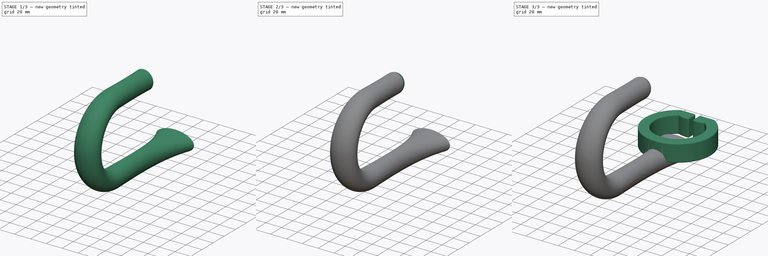
[diagram: build sequence overview — one tinted view per stage of 3, left to right]
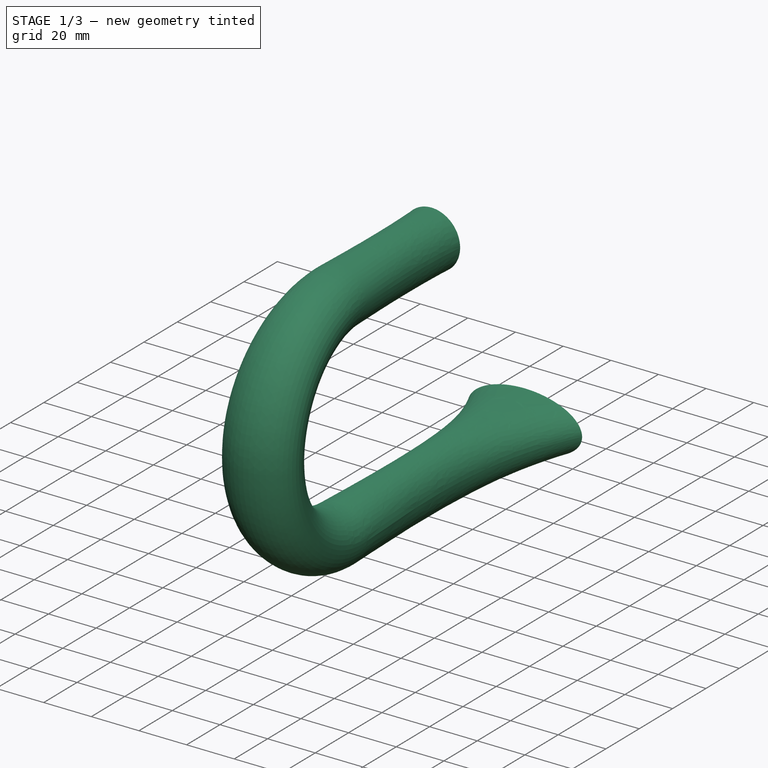
[diagram: stage 1 of 3 — iso view after this stage's code; geometry added in this stage tinted green]
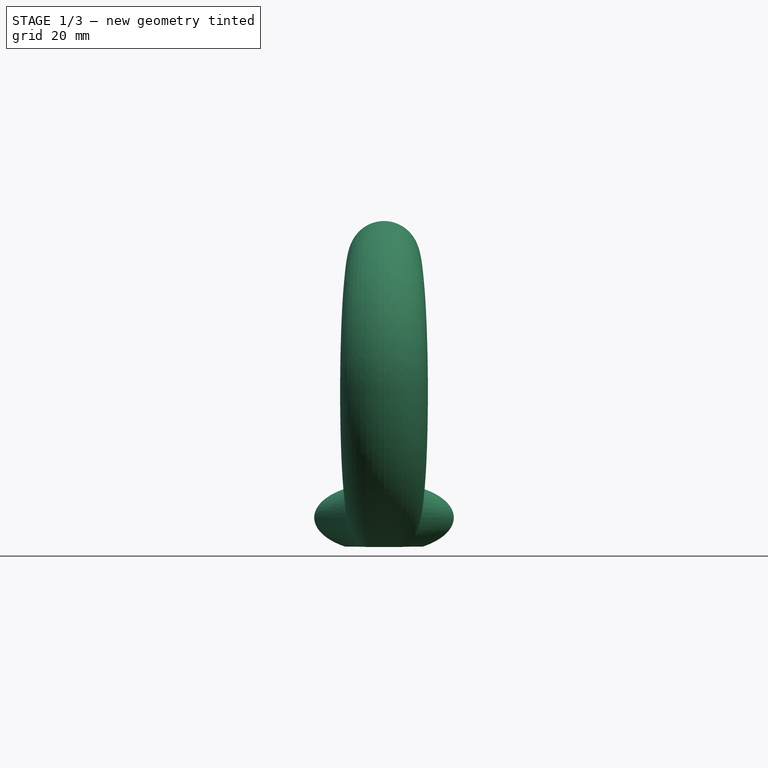
[diagram: stage 1 of 3 — front view after this stage's code; geometry added in this stage tinted green]
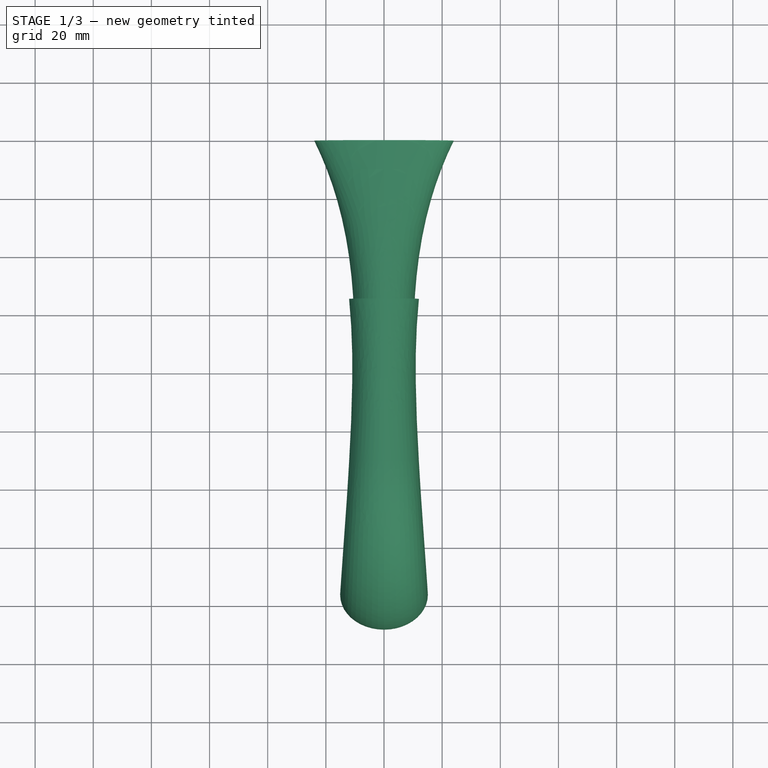
[diagram: stage 1 of 3 — top view after this stage's code; geometry added in this stage tinted green]
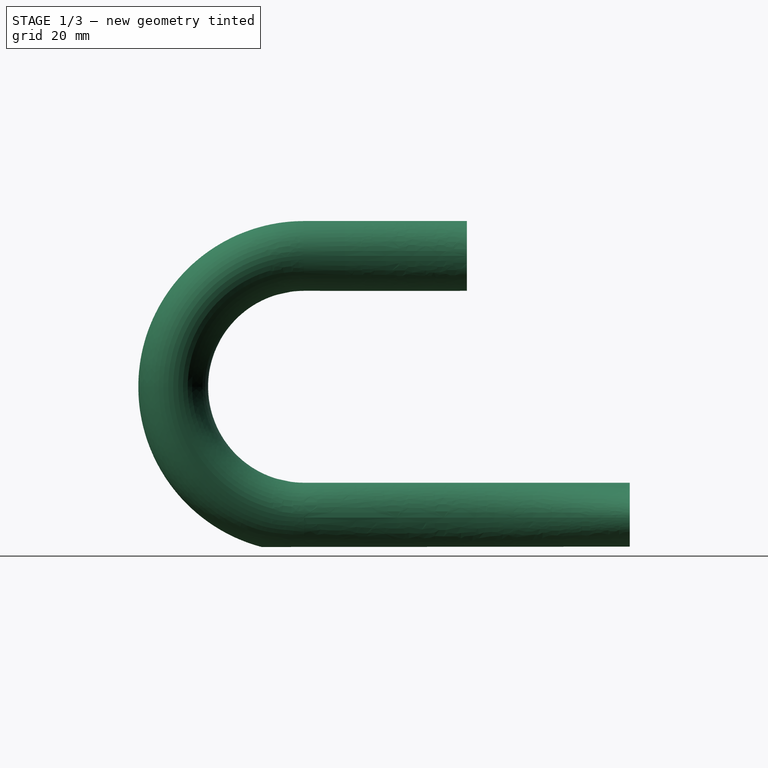
[diagram: stage 1 of 3 — right view after this stage's code; geometry added in this stage tinted green]
FCSTD DOCUMENT  (FreeCAD 1.0R39285 (Git))
Label: EVHook
License: All rights reserved
LicenseURL: https://en.wikipedia.org/wiki/All_rights_reserved
objects: Sketcher::SketchObject×8, PartDesign::Plane×6, PartDesign::Fillet×2, PartDesign::Body×2, Spreadsheet::Sheet×1, PartDesign::Pad×1, PartDesign::AdditivePipe×1, PartDesign::Pocket×1
note: 39 computed .brp shape members not serialized (recipe doc carries the construction recipe); baked Part::Feature solids carry a one-line shape summary decoded from their .brp

FEATURE [PartDesign::Body] Body  label="ChargerGripper"
  AllowCompound = false
  Group = -> [Sketch001,Pad,Fillet004]
  Origin = -> Origin
  Tip = -> Fillet004
FEATURE [PartDesign::Plane] DatumPlane003  label="LowerCurveDatumPlane"
  AttachmentSupport = -> [Sketch]
  Length = 65.9373
  MapMode = 7
  Placement = pos=(0,-112,0) rot=(1,0,0;1.5708rad)
  ResizeMode = 0
  Width = 142.936
FEATURE [Sketcher::SketchObject] Sketch005  label="LowerCurveDatumPlaneSketch"
  ArcFitTolerance = 0
  AttachmentSupport = -> [DatumPlane003]
  FullyConstrained = true
  MakeInternals = false
  MapMode = 5
  Placement = pos=(0,-112,0) rot=(1,0,0;1.5708rad)
  expr: Constraints[1] = Spreadsheet.WallThickness
  sketch-geometry (1):
    g0: Circle CenterX=0 CenterY=0 CenterZ=0 NormalX=0 NormalY=0 NormalZ=1 AngleXU=0 Radius=12
  constraints (2):
    c: Coincident(g0,g-1)
    c: Diameter(g0) = 24
FEATURE [PartDesign::Plane] DatumPlane004  label="UpperCurveDatumPlane"
  AttachmentSupport = -> [Sketch]
  Length = 65.9373
  MapMode = 7
  Placement = pos=(0,-112,90) rot=(0,0.707107,0.707107;3.14159rad)
  ResizeMode = 0
  Width = 142.936
FEATURE [Sketcher::SketchObject] Sketch006  label="UpperCurveDatumPlaneSketch"
  ArcFitTolerance = 0
  AttachmentSupport = -> [DatumPlane004]
  FullyConstrained = true
  MakeInternals = false
  MapMode = 5
  Placement = pos=(0,-112,90) rot=(0,0.707107,0.707107;3.14159rad)
  expr: Constraints[1] = Spreadsheet.WallThickness
  sketch-geometry (1):
    g0: Circle CenterX=0 CenterY=0 CenterZ=0 NormalX=0 NormalY=0 NormalZ=1 AngleXU=0 Radius=12
  constraints (2):
    c: Coincident(g0,g-1)
    c: Diameter(g0) = 24
FEATURE [PartDesign::AdditivePipe] AdditivePipe
  AuxilleryCurvelinear = true
  AuxillerySpineTangent = false
  Binormal = (0,0,0)
  Mode = 0
  Placement = pos=(0,0,0) rot=(0,0.707107,0.707107;3.14159rad)
  Profile = -> Sketch002
  Sections = -> [Sketch003,Sketch004,Sketch005,Sketch006]
  Spine = -> Sketch [Edge4,Edge3,Edge2,Edge1]
  SpineTangent = false
  Suppressed = false
  Transformation = 1
  Transition = 0
FEATURE [PartDesign::Plane] DatumPlane005
  AttachmentOffset = pos=(0,0,-2.55) rot=(0,0,1;0rad)
  AttachmentSupport = -> [AdditivePipe]
  Length = 69.6997
  MapMode = 45
  Placement = pos=(-8e-15,-76.125,-10.05) rot=(1,0,0;0.000917rad)
  ResizeMode = 0
  Width = 213.738
FEATURE [Sketcher::SketchObject] Sketch007
  ArcFitTolerance = 1e-06
  AttachmentSupport = -> [DatumPlane005]
  FullyConstrained = false
  MakeInternals = false
  MapMode = 5
  Placement = pos=(-8e-15,-76.125,-10.05) rot=(1,0,0;0.000917rad)
  sketch-geometry (4):
    g0: LineSegment StartX=-29.3901 StartY=86.1495 StartZ=0 EndX=-29.3901 EndY=-96.3246 EndZ=0
    g1: LineSegment StartX=-29.3901 StartY=-96.3246 StartZ=0 EndX=31.8102 EndY=-96.3246 EndZ=0
    g2: LineSegment StartX=31.8102 StartY=-96.3246 StartZ=0 EndX=31.8102 EndY=86.1495 EndZ=0
    g3: LineSegment StartX=31.8102 StartY=86.1495 StartZ=0 EndX=-29.3901 EndY=86.1495 EndZ=0
  constraints (8):
    c: Coincident(g0,g1)
    c: Coincident(g1,g2)
    c: Coincident(g2,g3)
    c: Coincident(g3,g0)
    c: Vertical(g0)
    c: Vertical(g2)
    c: Horizontal(g1)
    c: Horizontal(g3)
FEATURE [PartDesign::Pocket] Pocket
  BaseFeature = -> AdditivePipe
  Direction = (-1.5e-15,0.000917481,-1)
  Length = 5
  Length2 = 5
  Placement = pos=(0,0,0) rot=(0,0.707107,0.707107;3.14159rad)
  Profile = -> Sketch007
  ReferenceAxis = -> Sketch007 [N_Axis]
  Refine = true
  Suppressed = false
  Type = 0
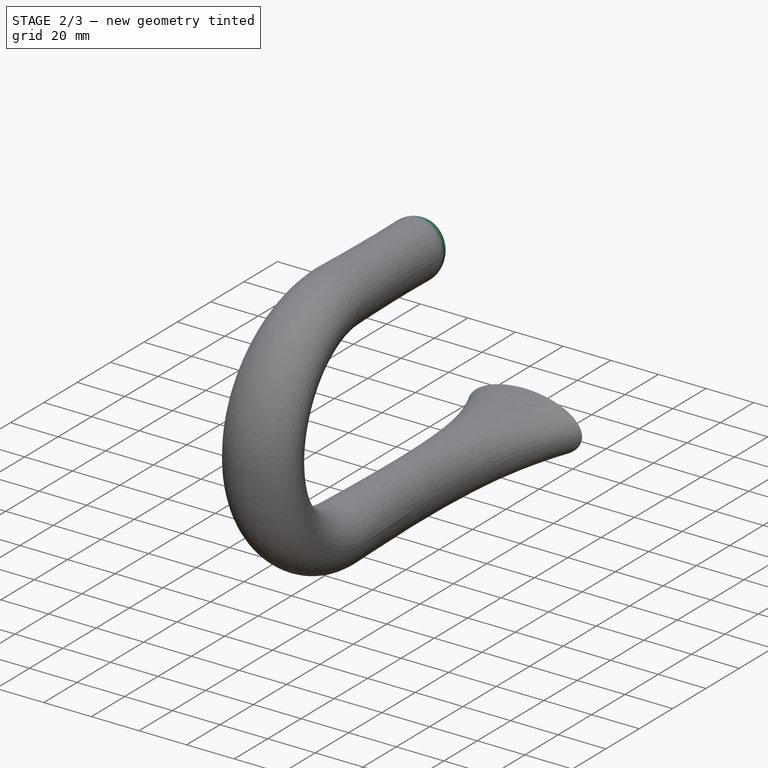
[diagram: stage 2 of 3 — iso view after this stage's code; geometry added in this stage tinted green]
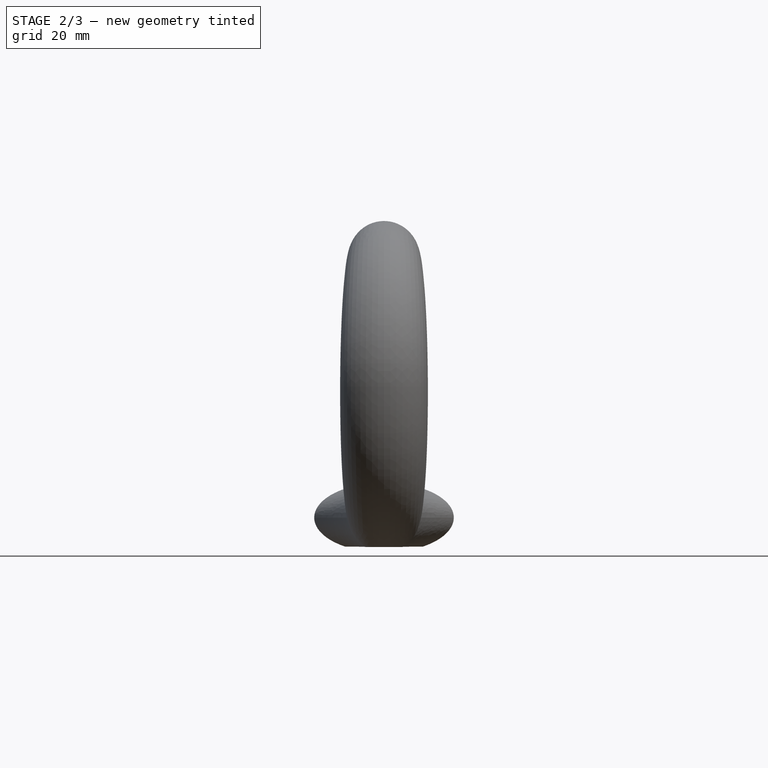
[diagram: stage 2 of 3 — front view after this stage's code; geometry added in this stage tinted green]
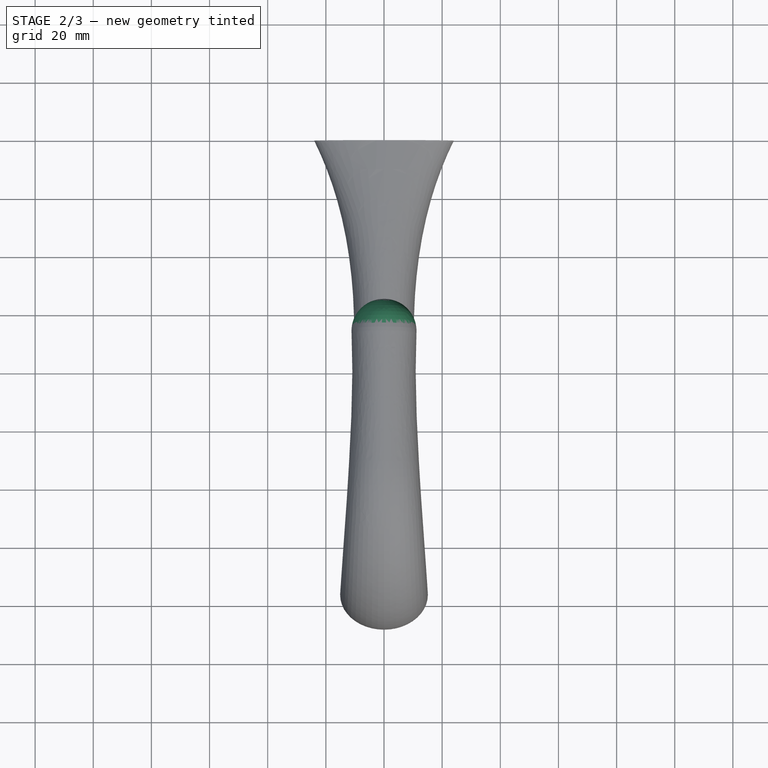
[diagram: stage 2 of 3 — top view after this stage's code; geometry added in this stage tinted green]
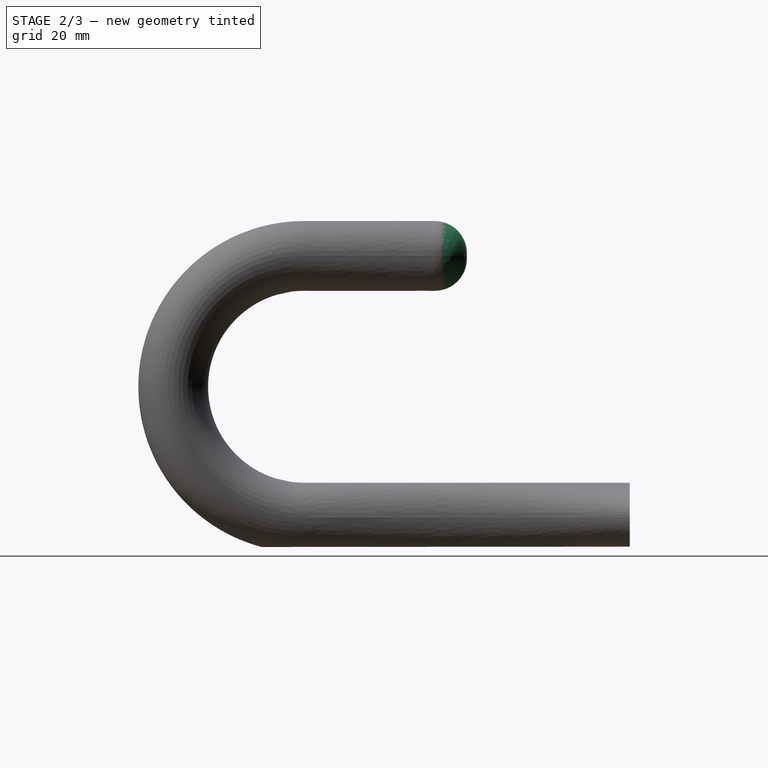
[diagram: stage 2 of 3 — right view after this stage's code; geometry added in this stage tinted green]
FEATURE [PartDesign::Fillet] Fillet
  Base = -> Pocket [Face1]
  BaseFeature = -> Pocket
  Placement = pos=(0,0,0) rot=(0,0.707107,0.707107;3.14159rad)
  Radius = 11
  Refine = true
  SupportTransform = false
  Suppressed = false
  UseAllEdges = false
FEATURE [PartDesign::Body] Body001  label="Hook"
  AllowCompound = false
  Group = -> [Sketch,DatumPlane,DatumPlane001,Sketch003,Sketch002,DatumPlane002,Sketch004,DatumPlane003,Sketch005,DatumPlane004,AdditivePipe,Sketch006,DatumPlane005,Sketch007,Pocket,Fillet]
  Origin = -> Origin001
  Placement = pos=(0,-30,10) rot=(0,0,1;0rad)
  Tip = -> Fillet
  expr: .Placement.Base.z = Spreadsheet.EvHookThickness / 2 - 1
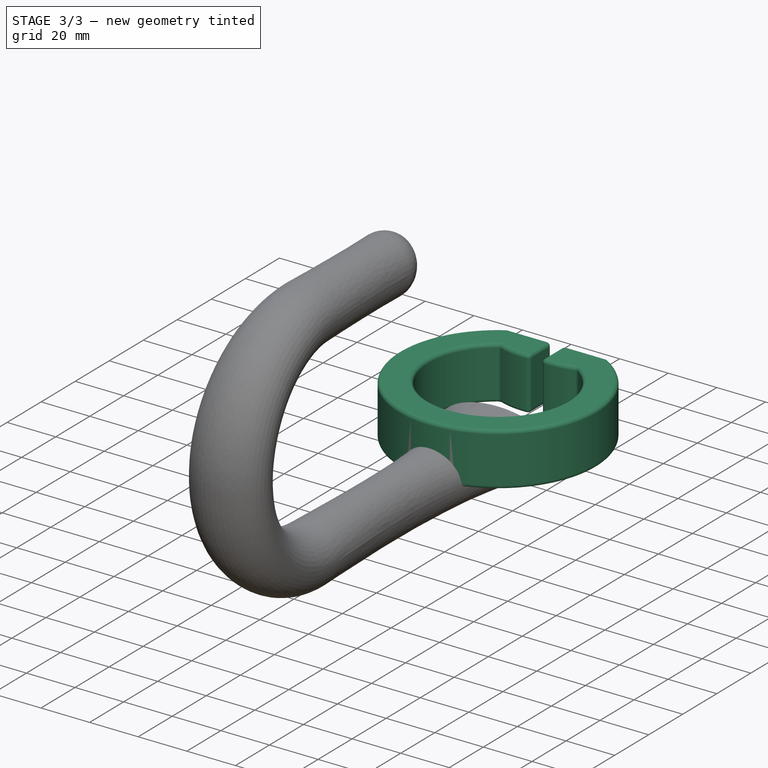
[diagram: stage 3 of 3 — iso view after this stage's code; geometry added in this stage tinted green]
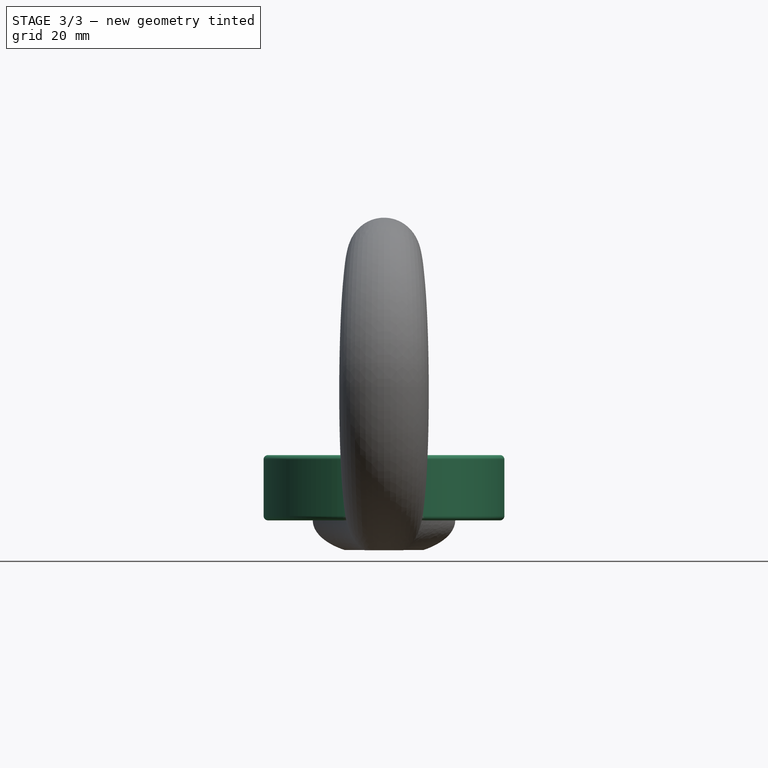
[diagram: stage 3 of 3 — front view after this stage's code; geometry added in this stage tinted green]
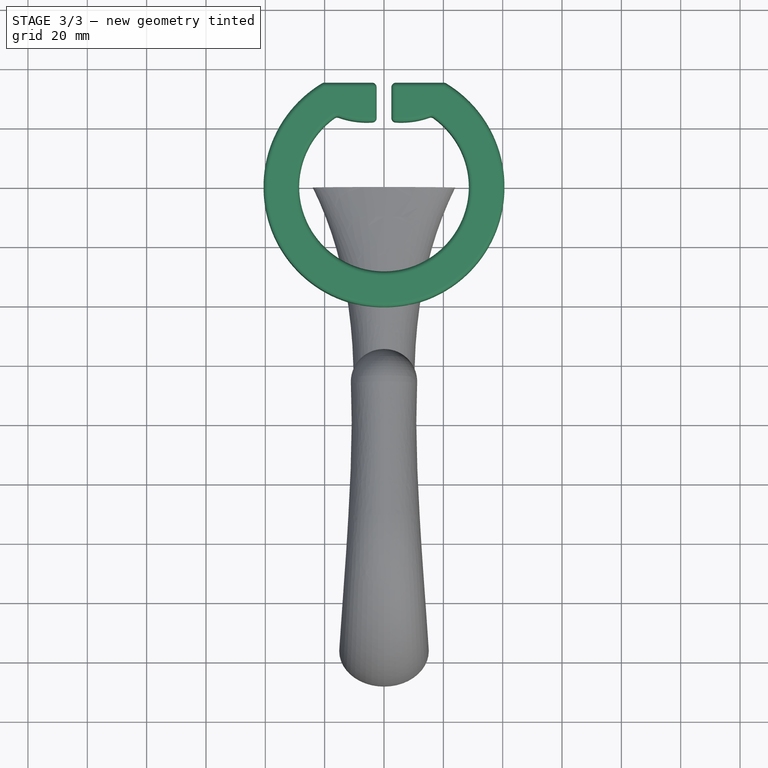
[diagram: stage 3 of 3 — top view after this stage's code; geometry added in this stage tinted green]
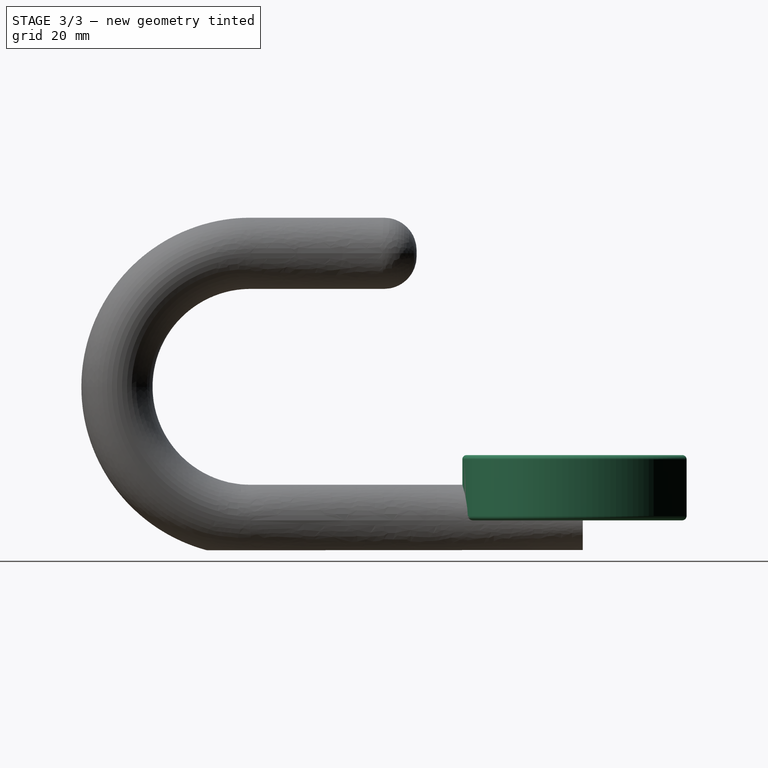
[diagram: stage 3 of 3 — right view after this stage's code; geometry added in this stage tinted green]
FEATURE [Sketcher::SketchObject] Sketch001  label="ChargerGripperSketch"
  ArcFitTolerance = 0
  AttachmentSupport = -> [XY_Plane]
  FullyConstrained = true
  MakeInternals = false
  MapMode = 5
  expr: Constraints[0] = Spreadsheet.EvPlugHookDiameter
  expr: Constraints[11] = Spreadsheet.EvHookRadiusToIndent
  expr: Constraints[14] = Spreadsheet.EvPlugHookSpacerRadius
  expr: Constraints[17] = Spreadsheet.EvHookRadiusToIndent
  expr: Constraints[18] = Spreadsheet.EvPlugHeightOfIndent
  expr: Constraints[1] = Spreadsheet.EvPlugHookOpening
  expr: Constraints[21] = Spreadsheet.EvPlugHookSpacerRadius
  expr: Constraints[23] = Spreadsheet.EvPlugHookOpeningSmall / 2
  expr: Constraints[24] = Spreadsheet.EvPlugHookOpeningSmall / 2
  expr: Constraints[5] = Spreadsheet.EvPlugHookDiameter + Spreadsheet.WallThickness
  sketch-geometry (8):
    g0: ArcOfCircle CenterX=-2.2e-15 CenterY=0 CenterZ=0 NormalX=0 NormalY=0 NormalZ=1 AngleXU=0 Radius=28.6 StartAngle=2.16451 EndAngle=7.26027
    g1: ArcOfCircle CenterX=-2.2e-15 CenterY=0 CenterZ=0 NormalX=0 NormalY=0 NormalZ=1 AngleXU=0 Radius=40.6 StartAngle=2.10225 EndAngle=7.32252
    g2: LineSegment StartX=-2.5 StartY=35 StartZ=0 EndX=-2.5 EndY=22 EndZ=0
    g3: LineSegment StartX=-20.5757 StartY=35 StartZ=0 EndX=-2.5 EndY=35 EndZ=0
    g4: LineSegment StartX=20.5757 StartY=35 StartZ=0 EndX=2.5 EndY=35 EndZ=0
    g5: ArcOfCircle CenterX=-5.82002 CenterY=50 CenterZ=0 NormalX=0 NormalY=0 NormalZ=1 AngleXU=0 Radius=28.1961 StartAngle=4.343 EndAngle=4.83041
    g6: LineSegment StartX=2.5 StartY=35 StartZ=0 EndX=2.5 EndY=22 EndZ=0
    g7: ArcOfCircle CenterX=5.82002 CenterY=50 CenterZ=0 NormalX=0 NormalY=0 NormalZ=1 AngleXU=0 Radius=28.1961 StartAngle=4.59437 EndAngle=5.08177
  constraints (26):
    c: Diameter(g0) = 57.2
    c: DistanceX(g0,g0) = 32
    c: Symmetric(g0,g0,g-2)
    c: PointOnObject(g0,g-1)
    c: Coincident(g1,g0)
    c: Diameter(g1) = 81.2
    c: Coincident(g3,g1)
    c: Horizontal(g3)
    c: Coincident(g4,g1)
    c: Coincident(g2,g3)
    c: Parallel(g2,g-2)
    c: Distance(g2,g-1) = 22
    c: Coincident(g5,g0)
    c: Coincident(g5,g2)
    c: Distance(g5,g-1) = 50
    c: Coincident(g6,g4)
    c: Vertical(g6)
    c: DistanceY(g-1,g6) = 22
    c: DistanceY(g6,g6) = 13
    c: Coincident(g7,g0)
    c: Coincident(g7,g6)
    c: DistanceY(g-1,g7) = 50
    c: DistanceY(g2,g2) = 13
    c: Distance(g2,g-2) = 2.5
    c: Distance(g4,g-2) = 2.5
    c: Horizontal(g4)
FEATURE [Spreadsheet::Sheet] Spreadsheet
  cells = A1='EvPlugHookDiameter; B1(EvPlugHookDiameter)=57.2; D1='Wall Thickness; E1(WallThickness)=24; G1='HookLength; H1(HookLength)==100 + WallThickness / 2; A2='EvPlugHookOpening; B2(EvPlugHookOpening)=32; G2='HookDiameter; H2(HookDiameter)==50 + WallThickness / 2; A3='EvPLugHookSpacing; B3(EvPLugHookSpacing)=37; G3='HookSpacing; H3(HookSpacing)=91; A4='EvPLugHookCenterDistance; B4(EvPLugHookCenterDistance)=30; A5='EvPlugHookSpacerRadius; B5(EvPlugHookSpacerRadius)=50; A6='EvHookRadiusToIndent; B6(EvHookRadiusToIndent)==44 / 2; A7='EvPlugHeightOfIndent; B7(EvPlugHeightOfIndent)=13; A8='EvPlugHookOpeningSmall; B8(EvPlugHookOpeningSmall)=5; A9='EvHookThicknes; B9(EvHookThickness)=22
FEATURE [Sketcher::SketchObject] Sketch  label="HookSketch"
  ArcFitTolerance = 0
  AttachmentSupport = -> [YZ_Plane001]
  FullyConstrained = true
  MakeInternals = false
  MapMode = 5
  Placement = pos=(0,0,0) rot=(0.57735,0.57735,0.57735;2.0944rad)
  expr: Constraints[12] = Spreadsheet.HookLength
  expr: Constraints[1] = -Spreadsheet.HookLength
  expr: Constraints[2] = 90
  expr: Constraints[5] = Spreadsheet.HookLength / 2
  sketch-geometry (5):
    g0: ArcOfCircle CenterX=-112 CenterY=45 CenterZ=0 NormalX=0 NormalY=0 NormalZ=1 AngleXU=0 Radius=45 StartAngle=1.5708 EndAngle=4.71239
    g1: LineSegment StartX=-112 StartY=90 StartZ=0 EndX=-56 EndY=90 EndZ=0
    g2: LineSegment [constr] StartX=-112 StartY=90 StartZ=0 EndX=-112 EndY=0 EndZ=0
    g3: LineSegment StartX=0 StartY=0 StartZ=0 EndX=-40 EndY=0 EndZ=0
    g4: LineSegment StartX=-40 StartY=0 StartZ=0 EndX=-112 EndY=0 EndZ=0
  constraints (15):
    c: PointOnObject(g0,g-1)
    c: DistanceX(g-2,g0) = -112
    c: Diameter(g0) = 90
    c: Coincident(g1,g0)
    c: Horizontal(g1)
    c: DistanceX(g1,g1) = 56
    c: Coincident(g2,g0)
    c: PointOnObject(g0,g2)
    c: Coincident(g3,g-1)
    c: PointOnObject(g3,g-1)
    c: Coincident(g4,g3)
    c: Coincident(g4,g0)
    c: Distance(g3,g0) = 112
    c: Coincident(g2,g0)
    c: Distance(g3,g3) = 40
FEATURE [PartDesign::Pad] Pad
  Direction = (0,0,1)
  Length = 22
  Length2 = 10
  Profile = -> Sketch001
  ReferenceAxis = -> Sketch001 [N_Axis]
  Suppressed = false
  Type = 0
  expr: Length = Spreadsheet.EvHookThickness
FEATURE [PartDesign::Plane] DatumPlane  label="UpperDatumPlane"
  AttachmentSupport = -> [Sketch]
  Length = 65.9373
  MapMode = 7
  Placement = pos=(0,0,0) rot=(0,0.707107,0.707107;3.14159rad)
  ResizeMode = 0
  Width = 142.936
FEATURE [PartDesign::Plane] DatumPlane001  label="LowerDatumPlane"
  AttachmentSupport = -> [Sketch]
  Length = 65.9373
  MapMode = 7
  Placement = pos=(0,-40,0) rot=(0,0.707107,0.707107;3.14159rad)
  ResizeMode = 0
  Width = 142.936
FEATURE [Sketcher::SketchObject] Sketch002  label="UpperDatumPlaneSketch"
  ArcFitTolerance = 0
  AttachmentSupport = -> [DatumPlane]
  FullyConstrained = true
  MakeInternals = false
  MapMode = 5
  Placement = pos=(0,0,0) rot=(0,0.707107,0.707107;3.14159rad)
  expr: Constraints[6] = Spreadsheet.WallThickness
  expr: Constraints[7] = Spreadsheet.WallThickness * 2
  sketch-geometry (5):
    g0: Ellipse CenterX=0 CenterY=0 CenterZ=0 NormalX=0 NormalY=0 NormalZ=1 MajorRadius=24 MinorRadius=12 AngleXU=0
    g1: LineSegment [constr] StartX=24 StartY=0 StartZ=0 EndX=-24 EndY=0 EndZ=0
    g2: LineSegment [constr] StartX=0 StartY=12 StartZ=0 EndX=0 EndY=-12 EndZ=0
    g3: GeomPoint [constr] X=20.7846 Y=0 Z=0
    g4: GeomPoint [constr] X=-20.7846 Y=0 Z=0
  constraints (5):
    c: InternalAlignment(g1-g4 -> g0) x4
    c: Coincident(g0,g-1)
    c: PointOnObject(g1,g-1)
    c: Distance(g2,g2) = 24
    c: Distance(g1,g1) = 48
FEATURE [Sketcher::SketchObject] Sketch003  label="LowerDatumPlaneSketch"
  ArcFitTolerance = 0
  AttachmentSupport = -> [DatumPlane001]
  FullyConstrained = true
  MakeInternals = false
  MapMode = 5
  Placement = pos=(0,-40,0) rot=(0,0.707107,0.707107;3.14159rad)
  expr: Constraints[1] = Spreadsheet.WallThickness
  sketch-geometry (1):
    g0: Circle CenterX=0 CenterY=0 CenterZ=0 NormalX=0 NormalY=0 NormalZ=1 AngleXU=0 Radius=12
  constraints (2):
    c: Coincident(g0,g-1)
    c: Diameter(g0) = 24
FEATURE [PartDesign::Plane] DatumPlane002  label="HookEndDatumPlane"
  AttachmentSupport = -> [Sketch]
  Length = 65.9373
  MapMode = 7
  Placement = pos=(0,-56,90) rot=(1,0,0;1.5708rad)
  ResizeMode = 0
  Width = 142.936
FEATURE [Sketcher::SketchObject] Sketch004  label="HookEndDatumPlaneSketch"
  ArcFitTolerance = 0
  AttachmentSupport = -> [DatumPlane002]
  FullyConstrained = true
  MakeInternals = false
  MapMode = 5
  Placement = pos=(0,-56,90) rot=(1,0,0;1.5708rad)
  expr: Constraints[1] = Spreadsheet.WallThickness
  sketch-geometry (1):
    g0: Circle CenterX=0 CenterY=0 CenterZ=0 NormalX=0 NormalY=0 NormalZ=1 AngleXU=0 Radius=12
  constraints (2):
    c: Coincident(g0,g-1)
    c: Diameter(g0) = 24
FEATURE [PartDesign::Fillet] Fillet004
  Base = -> Pad [Face8,Face7,Face1,Edge13,Edge12,Edge10,Edge16,Edge9,Edge15,Edge14,Edge5,Edge7,Edge19]
  BaseFeature = -> Pad
  Radius = 1.5
  SupportTransform = false
  Suppressed = false
  UseAllEdges = true
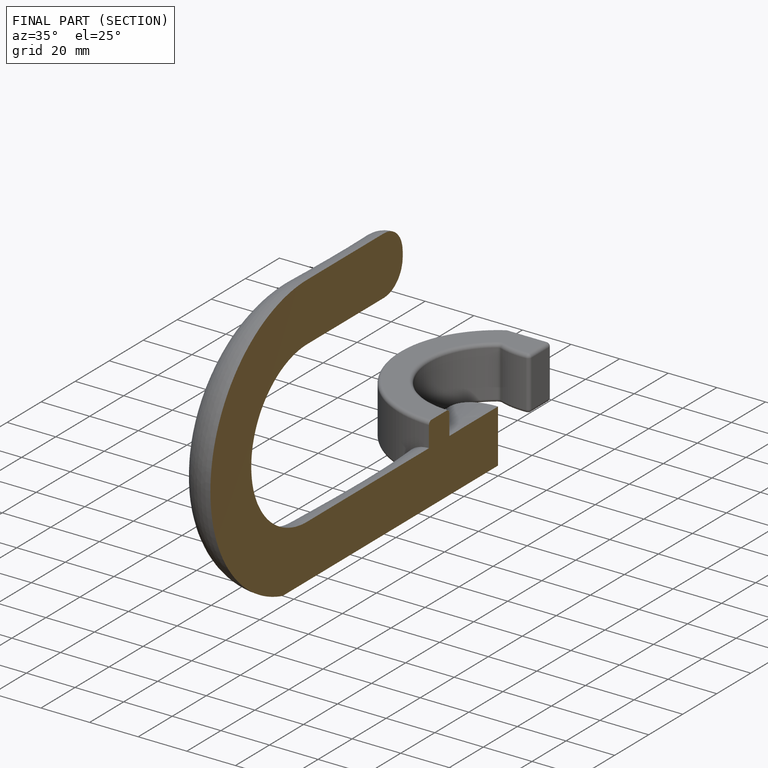
[diagram: finished part — half-section view (interior)]
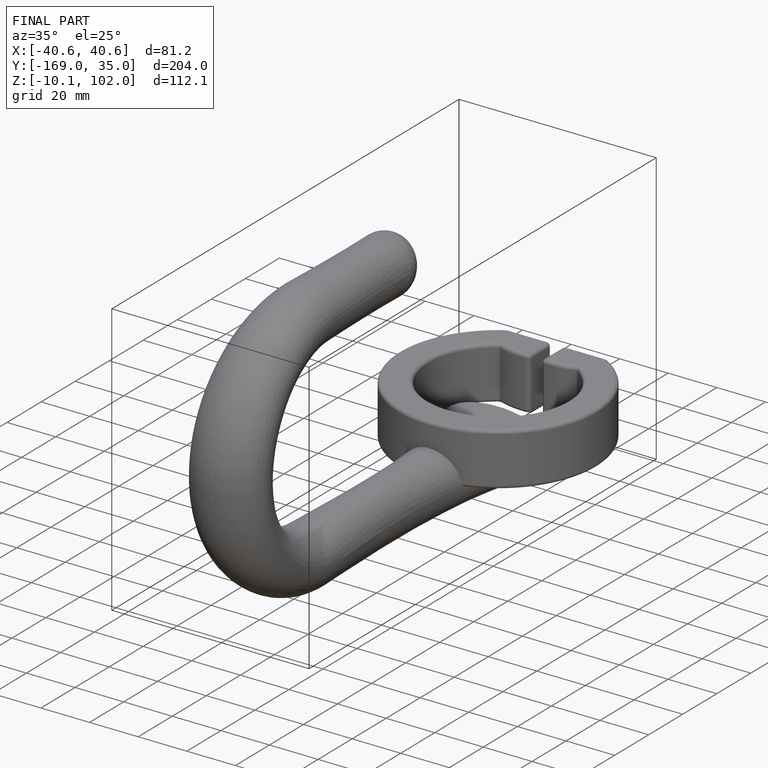
[diagram: finished part — iso view with bounding-box wireframe]
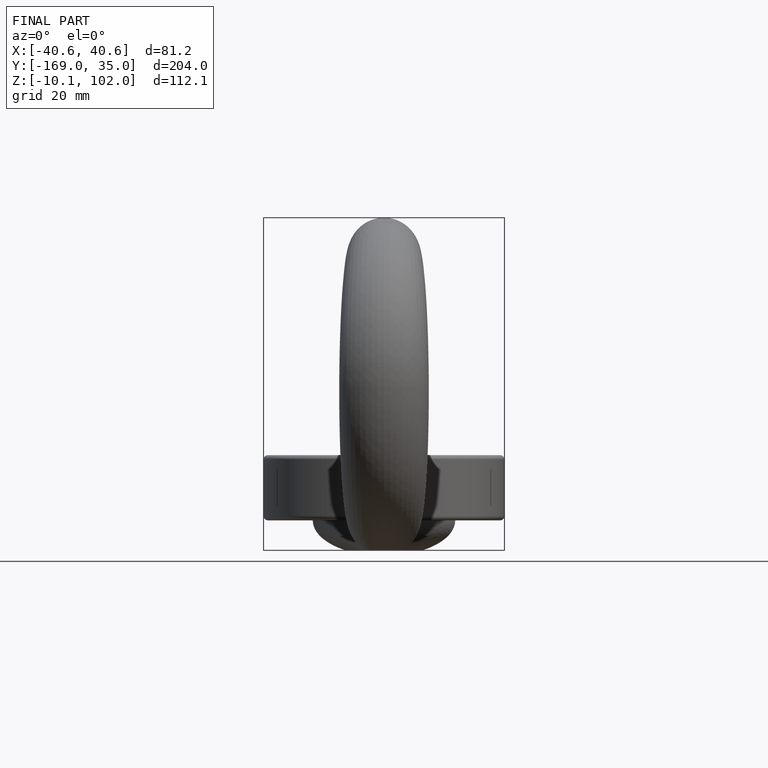
[diagram: finished part — front view with bounding-box wireframe]
